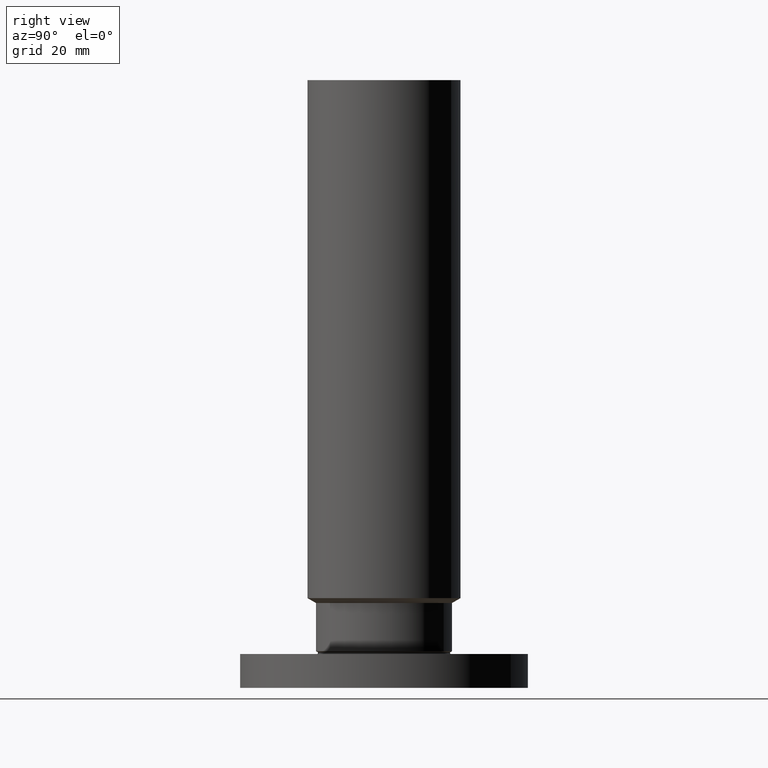
[diagram: clean part render]
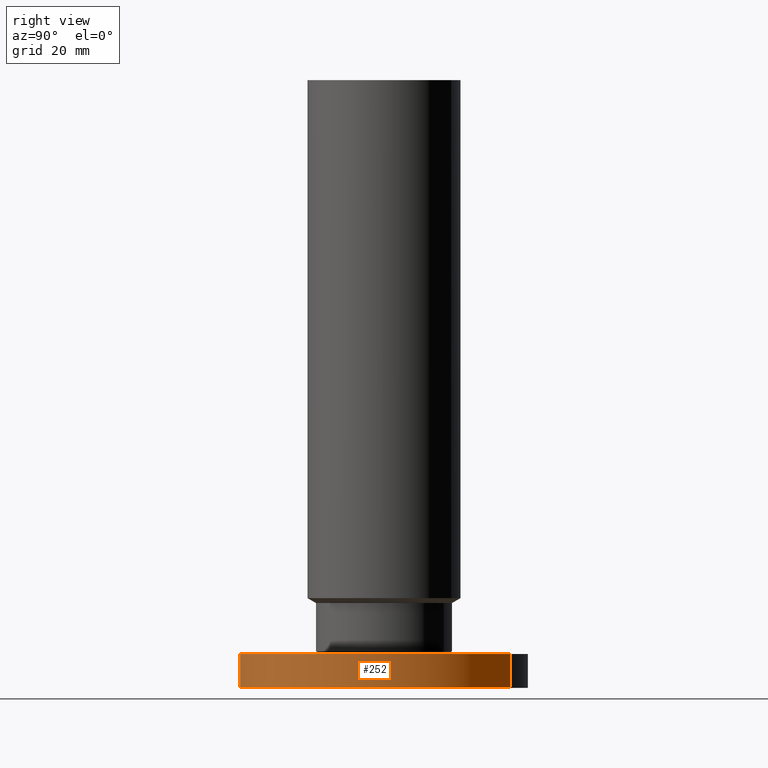
[diagram: same view with one face highlighted and labeled with its STEP entity id]
A machine part, right view. The second image highlights one B-rep face of the part: STEP entity #252.
In plain terms, the highlighted cylindrical surface (partial cylindrical patch) has radius 53.975 mm, axis along (0, 0, -1).
Its self-contained STEP definition (entity closure, byte-faithful):
#99=AXIS2_PLACEMENT_3D('Circle Axis2P3D',#97,#98,$) ;
#213=AXIS2_PLACEMENT_3D('Cylinder Axis2P3D',#210,#211,#212) ;
#243=AXIS2_PLACEMENT_3D('Circle Axis2P3D',#241,#242,$) ;
#97=CARTESIAN_POINT('Axis2P3D Location',(0.,0.,0.497500000002)) ;
#101=CARTESIAN_POINT('Vertex',(1.01877926954,1.86486294402,0.497500000002)) ;
#103=CARTESIAN_POINT('Vertex',(-1.01877926954,-1.86486294402,0.497500000002)) ;
#210=CARTESIAN_POINT('Axis2P3D Location',(0.,0.,4.43750000002)) ;
#219=CARTESIAN_POINT('Vertex',(-1.01877926954,-1.86486294402,0.)) ;
#221=CARTESIAN_POINT('Vertex',(1.01877926954,1.86486294402,0.)) ;
#224=CARTESIAN_POINT('Line Origine',(-1.01877926954,-1.86486294402,0.248750000001)) ;
#229=CARTESIAN_POINT('Line Origine',(1.01877926954,1.86486294402,0.248750000001)) ;
#241=CARTESIAN_POINT('Axis2P3D Location',(0.,0.,0.)) ;
#98=DIRECTION('Axis2P3D Direction',(0.,0.,-0.0393700787402)) ;
#211=DIRECTION('Axis2P3D Direction',(0.,0.,-0.0393700787402)) ;
#212=DIRECTION('Axis2P3D XDirection',(0.0188750212049,0.0345504945626,0.)) ;
#225=DIRECTION('Vector Direction',(0.,0.,-0.0393700787402)) ;
#230=DIRECTION('Vector Direction',(0.,0.,-0.0393700787402)) ;
#242=DIRECTION('Axis2P3D Direction',(0.,0.,-0.0393700787402)) ;
#226=VECTOR('Line Direction',#225,0.0393700787402) ;
#231=VECTOR('Line Direction',#230,0.0393700787402) ;
#247=ORIENTED_EDGE('',*,*,#245,.F.) ;
#248=ORIENTED_EDGE('',*,*,#233,.T.) ;
#249=ORIENTED_EDGE('',*,*,#105,.T.) ;
#250=ORIENTED_EDGE('',*,*,#228,.F.) ;
#252=ADVANCED_FACE('PartBody',(#251),#214,.T.) ;
#100=CIRCLE('generated circle',#99,2.12500000001) ;
#244=CIRCLE('generated circle',#243,2.12500000001) ;
#214=CYLINDRICAL_SURFACE('generated cylinder',#213,2.12500000001) ;
#105=EDGE_CURVE('',#102,#104,#100,.T.) ;
#228=EDGE_CURVE('',#220,#104,#227,.F.) ;
#233=EDGE_CURVE('',#222,#102,#232,.F.) ;
#245=EDGE_CURVE('',#222,#220,#244,.T.) ;
#246=EDGE_LOOP('',(#247,#248,#249,#250)) ;
#251=FACE_OUTER_BOUND('',#246,.T.) ;
#227=LINE('Line',#224,#226) ;
#232=LINE('Line',#229,#231) ;
#102=VERTEX_POINT('',#101) ;
#104=VERTEX_POINT('',#103) ;
#220=VERTEX_POINT('',#219) ;
#222=VERTEX_POINT('',#221) ;